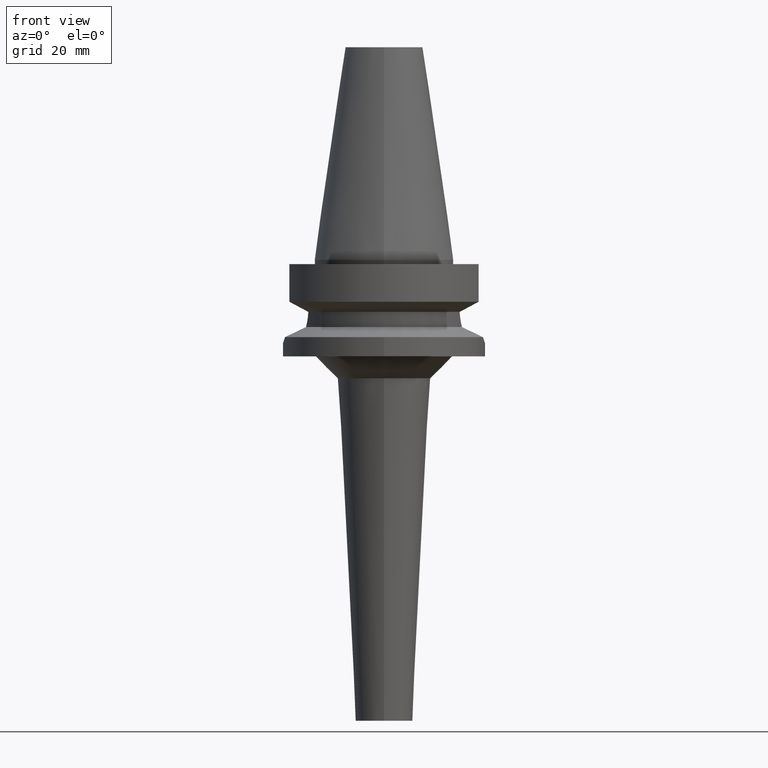
[diagram: clean part render]
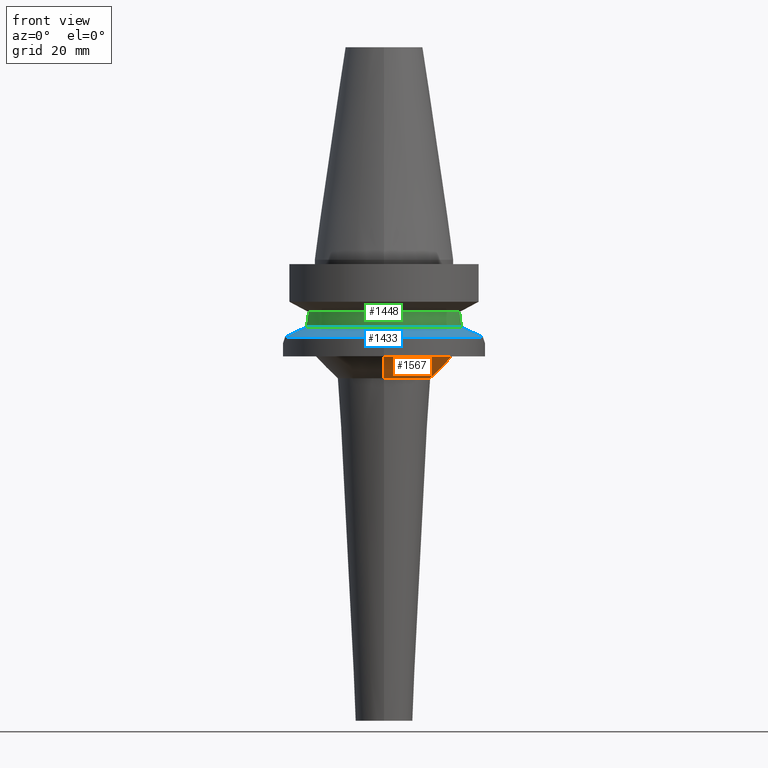
[diagram: same view with three faces highlighted in distinct colors, each labeled with its STEP entity id]
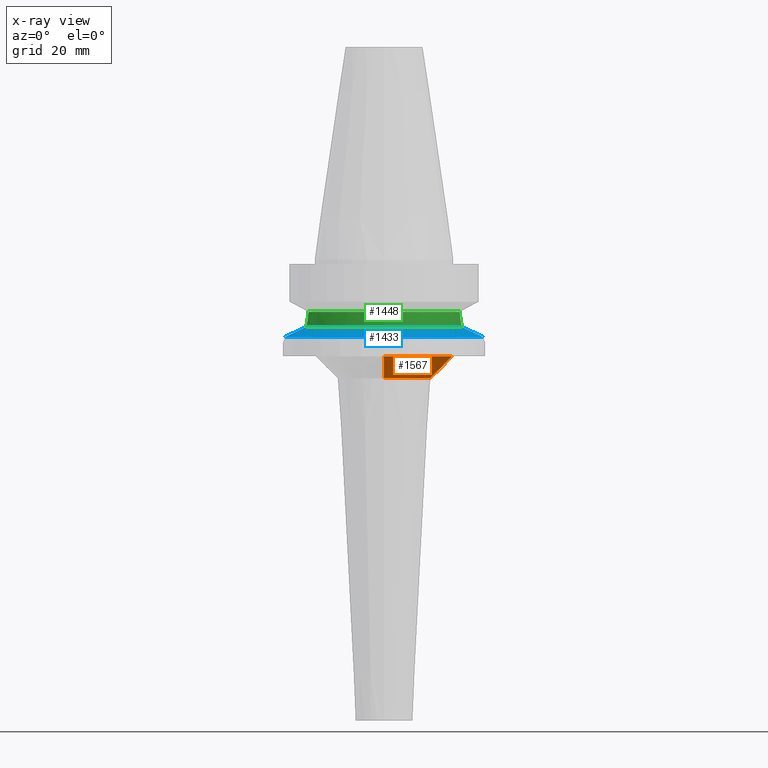
[diagram: x-ray of the same camera — body ghosted, the three highlighted faces saturated]
A machine part, front view with three faces highlighted in distinct colors.
The next image is the same camera in x-ray (body ghosted, the three faces saturated) — at least one of them is partly hidden behind the body in this view.
Their STEP definitions:

[orange] entity #1567 — the highlighted conical surface has half-angle 45 deg.
#639=CARTESIAN_POINT('',(0.E0,0.E0,-2.2E1));
#640=DIRECTION('',(0.E0,0.E0,-1.E0));
#641=DIRECTION('',(0.E0,1.E0,0.E0));
#642=AXIS2_PLACEMENT_3D('',#639,#640,#641);
#647=DIRECTION('',(0.E0,7.071067811866E-1,-7.071067811865E-1));
#648=VECTOR('',#647,7.071067811866E0);
#649=CARTESIAN_POINT('',(0.E0,-1.558780678408E1,-2.2E1));
#650=LINE('',#649,#648);
#662=DIRECTION('',(0.E0,-7.071067811866E-1,-7.071067811865E-1));
#663=VECTOR('',#662,7.071067811866E0);
#664=CARTESIAN_POINT('',(0.E0,1.558780678408E1,-2.2E1));
#665=LINE('',#664,#663);
#676=CARTESIAN_POINT('',(0.E0,0.E0,-2.7E1));
#677=DIRECTION('',(0.E0,0.E0,1.E0));
#678=DIRECTION('',(0.E0,-1.E0,0.E0));
#679=AXIS2_PLACEMENT_3D('',#676,#677,#678);
#1023=CARTESIAN_POINT('',(0.E0,1.058780678408E1,-2.7E1));
#1024=VERTEX_POINT('',#1023);
#1025=CARTESIAN_POINT('',(0.E0,-1.058780678408E1,-2.7E1));
#1026=VERTEX_POINT('',#1025);
#1027=CARTESIAN_POINT('',(0.E0,1.558780678408E1,-2.2E1));
#1028=VERTEX_POINT('',#1027);
#1029=CARTESIAN_POINT('',(0.E0,-1.558780678408E1,-2.2E1));
#1030=VERTEX_POINT('',#1029);
#1555=CARTESIAN_POINT('',(0.E0,0.E0,-2.45E1));
#1556=DIRECTION('',(0.E0,0.E0,1.E0));
#1557=DIRECTION('',(0.E0,1.E0,0.E0));
#1558=AXIS2_PLACEMENT_3D('',#1555,#1556,#1557);
#1559=CONICAL_SURFACE('',#1558,1.308780678408E1,4.5E1);
#1560=ORIENTED_EDGE('',*,*,#1545,.T.);
#1562=ORIENTED_EDGE('',*,*,#1561,.F.);
#1563=ORIENTED_EDGE('',*,*,#1548,.F.);
#1564=ORIENTED_EDGE('',*,*,#1535,.F.);
#1565=EDGE_LOOP('',(#1560,#1562,#1563,#1564));
#1566=FACE_OUTER_BOUND('',#1565,.F.);
#643=CIRCLE('',#642,1.558780678408E1);
#680=CIRCLE('',#679,1.058780678408E1);
#1535=EDGE_CURVE('',#1028,#1030,#643,.T.);
#1545=EDGE_CURVE('',#1028,#1024,#665,.T.);
#1548=EDGE_CURVE('',#1030,#1026,#650,.T.);
#1561=EDGE_CURVE('',#1026,#1024,#680,.T.);
#1567=ADVANCED_FACE('',(#1566),#1559,.T.);

[blue] entity #1433 — the highlighted conical surface has half-angle 60 deg.
#430=CARTESIAN_POINT('',(-2.255786346208E1,-4.488072640470E0,
-1.763279163029E1));
#431=CARTESIAN_POINT('',(-2.209865842715E1,-4.819633542796E0,
-1.741011980440E1));
#432=CARTESIAN_POINT('',(-2.112042381301E1,-5.416862613083E0,
-1.693661522924E1));
#433=CARTESIAN_POINT('',(-1.958642899302E1,-6.133917589245E0,
-1.619751952258E1));
#434=CARTESIAN_POINT('',(-1.838842661906E1,-6.563898334625E0,
-1.562396103069E1));
#435=CARTESIAN_POINT('',(-1.775736593456E1,-6.758398853744E0,
-1.532339055353E1));
#440=CARTESIAN_POINT('',(0.E0,1.022848384030E-14,-1.532339055353E1));
#441=DIRECTION('',(0.E0,0.E0,1.E0));
#442=DIRECTION('',(-9.345982070819E-1,-3.557052028286E-1,0.E0));
#443=AXIS2_PLACEMENT_3D('',#440,#441,#442);
#448=CARTESIAN_POINT('',(0.E0,1.022848384030E-14,-1.532339055353E1));
#449=DIRECTION('',(0.E0,0.E0,1.E0));
#450=DIRECTION('',(0.E0,-1.E0,0.E0));
#451=AXIS2_PLACEMENT_3D('',#448,#449,#450);
#456=CARTESIAN_POINT('',(1.775736593456E1,-6.758398853744E0,-1.532339055353E1));
#457=CARTESIAN_POINT('',(1.840360769520E1,-6.559219343741E0,-1.563119168760E1));
#458=CARTESIAN_POINT('',(1.962126651941E1,-6.120537216752E0,-1.621423420870E1));
#459=CARTESIAN_POINT('',(2.116333771721E1,-5.393599340677E0,-1.695735369637E1));
#460=CARTESIAN_POINT('',(2.211578077610E1,-4.807270652504E0,-1.741842255462E1));
#461=CARTESIAN_POINT('',(2.255786346208E1,-4.488072640470E0,-1.763279163029E1));
#466=CARTESIAN_POINT('',(0.E0,1.022848384030E-14,-1.763279163029E1));
#467=DIRECTION('',(0.E0,0.E0,-1.E0));
#468=DIRECTION('',(9.807766722644E-1,-1.951335930639E-1,0.E0));
#469=AXIS2_PLACEMENT_3D('',#466,#467,#468);
#474=CARTESIAN_POINT('',(0.E0,1.022848384030E-14,-1.763279163029E1));
#475=DIRECTION('',(0.E0,0.E0,-1.E0));
#476=DIRECTION('',(0.E0,-1.E0,0.E0));
#477=AXIS2_PLACEMENT_3D('',#474,#475,#476);
#516=CARTESIAN_POINT('',(2.255786346208E1,-4.488072640470E0,-1.763279163029E1));
#1037=VERTEX_POINT('',#516);
#1040=CARTESIAN_POINT('',(0.E0,-2.3E1,-1.763279163029E1));
#1041=VERTEX_POINT('',#1040);
#1042=VERTEX_POINT('',#456);
#1055=VERTEX_POINT('',#430);
#1056=VERTEX_POINT('',#435);
#1057=CARTESIAN_POINT('',(0.E0,-1.9E1,-1.532339055353E1));
#1058=VERTEX_POINT('',#1057);
#1415=CARTESIAN_POINT('',(0.E0,1.022848384030E-14,-1.647809109191E1));
#1416=DIRECTION('',(0.E0,0.E0,-1.E0));
#1417=DIRECTION('',(0.E0,-1.E0,0.E0));
#1418=AXIS2_PLACEMENT_3D('',#1415,#1416,#1417);
#1419=CONICAL_SURFACE('',#1418,2.1E1,6.E1);
#1420=ORIENTED_EDGE('',*,*,#1396,.T.);
#1422=ORIENTED_EDGE('',*,*,#1421,.T.);
#1424=ORIENTED_EDGE('',*,*,#1423,.T.);
#1426=ORIENTED_EDGE('',*,*,#1425,.T.);
#1428=ORIENTED_EDGE('',*,*,#1427,.T.);
#1430=ORIENTED_EDGE('',*,*,#1429,.T.);
#1431=EDGE_LOOP('',(#1420,#1422,#1424,#1426,#1428,#1430));
#1432=FACE_OUTER_BOUND('',#1431,.F.);
#436=B_SPLINE_CURVE_WITH_KNOTS('',3,(#430,#431,#432,#433,#434,#435),
.UNSPECIFIED.,.F.,.F.,(4,1,1,4),(0.E0,3.333333333333E-1,6.666666666667E-1,1.E0),
.UNSPECIFIED.);
#444=CIRCLE('',#443,1.9E1);
#452=CIRCLE('',#451,1.9E1);
#462=B_SPLINE_CURVE_WITH_KNOTS('',3,(#456,#457,#458,#459,#460,#461),
.UNSPECIFIED.,.F.,.F.,(4,1,1,4),(0.E0,3.333333333333E-1,6.666666666667E-1,1.E0),
.UNSPECIFIED.);
#470=CIRCLE('',#469,2.3E1);
#478=CIRCLE('',#477,2.3E1);
#1396=EDGE_CURVE('',#1055,#1056,#436,.T.);
#1421=EDGE_CURVE('',#1056,#1058,#444,.T.);
#1423=EDGE_CURVE('',#1058,#1042,#452,.T.);
#1425=EDGE_CURVE('',#1042,#1037,#462,.T.);
#1427=EDGE_CURVE('',#1037,#1041,#470,.T.);
#1429=EDGE_CURVE('',#1041,#1055,#478,.T.);
#1433=ADVANCED_FACE('',(#1432),#1419,.T.);

[green] entity #1448 — the highlighted cylindrical surface (partial cylindrical patch) has radius 19 mm, axis along (0, 0, -1).
#243=CARTESIAN_POINT('',(0.E0,1.093341284897E-14,-1.187660944647E1));
#244=DIRECTION('',(0.E0,0.E0,-1.E0));
#245=DIRECTION('',(9.071218755694E-1,-4.208680349747E-1,0.E0));
#246=AXIS2_PLACEMENT_3D('',#243,#244,#245);
#251=CARTESIAN_POINT('',(0.E0,1.093341284897E-14,-1.187660944647E1));
#252=DIRECTION('',(0.E0,0.E0,-1.E0));
#253=DIRECTION('',(0.E0,-1.E0,0.E0));
#254=AXIS2_PLACEMENT_3D('',#251,#252,#253);
#259=CARTESIAN_POINT('',(-1.723531622871E1,-7.996491146968E0,
-1.187660607766E1));
#435=CARTESIAN_POINT('',(-1.775736593456E1,-6.758398853744E0,
-1.532339055353E1));
#440=CARTESIAN_POINT('',(0.E0,1.022848384030E-14,-1.532339055353E1));
#441=DIRECTION('',(0.E0,0.E0,1.E0));
#442=DIRECTION('',(-9.345982070819E-1,-3.557052028286E-1,0.E0));
#443=AXIS2_PLACEMENT_3D('',#440,#441,#442);
#448=CARTESIAN_POINT('',(0.E0,1.022848384030E-14,-1.532339055353E1));
#449=DIRECTION('',(0.E0,0.E0,1.E0));
#450=DIRECTION('',(0.E0,-1.E0,0.E0));
#451=AXIS2_PLACEMENT_3D('',#448,#449,#450);
#456=CARTESIAN_POINT('',(1.775736593456E1,-6.758398853744E0,-1.532339055353E1));
#482=CARTESIAN_POINT('',(-1.775736593456E1,-6.758398853744E0,
-1.532339055353E1));
#483=CARTESIAN_POINT('',(-1.766912029360E1,-6.990260004965E0,
-1.496508499644E1));
#484=CARTESIAN_POINT('',(-1.750821497163E1,-7.386448373773E0,
-1.422991351577E1));
#485=CARTESIAN_POINT('',(-1.732653972797E1,-7.799370525108E0,
-1.306364447518E1));
#486=CARTESIAN_POINT('',(-1.725677323773E1,-7.950243580883E0,
-1.227571965473E1));
#487=CARTESIAN_POINT('',(-1.723531622871E1,-7.996491146968E0,
-1.187660607766E1));
#492=CARTESIAN_POINT('',(1.723531135314E1,-7.996501749112E0,-1.187660739353E1));
#493=CARTESIAN_POINT('',(1.725678889125E1,-7.950209935444E0,-1.227610109962E1));
#494=CARTESIAN_POINT('',(1.732665303634E1,-7.799119177172E0,-1.306450180029E1));
#495=CARTESIAN_POINT('',(1.750823173234E1,-7.386403530797E0,-1.422993365443E1));
#496=CARTESIAN_POINT('',(1.766912364433E1,-6.990251201065E0,-1.496509860151E1));
#497=CARTESIAN_POINT('',(1.775736593456E1,-6.758398853744E0,-1.532339055353E1));
#1042=VERTEX_POINT('',#456);
#1043=VERTEX_POINT('',#492);
#1056=VERTEX_POINT('',#435);
#1057=CARTESIAN_POINT('',(0.E0,-1.9E1,-1.532339055353E1));
#1058=VERTEX_POINT('',#1057);
#1073=VERTEX_POINT('',#259);
#1074=CARTESIAN_POINT('',(0.E0,-1.9E1,-1.187660944647E1));
#1075=VERTEX_POINT('',#1074);
#1434=CARTESIAN_POINT('',(0.E0,1.911306259429E-14,5.607E1));
#1435=DIRECTION('',(0.E0,0.E0,-1.E0));
#1436=DIRECTION('',(0.E0,-1.E0,0.E0));
#1437=AXIS2_PLACEMENT_3D('',#1434,#1435,#1436);
#1438=CYLINDRICAL_SURFACE('',#1437,1.9E1);
#1439=ORIENTED_EDGE('',*,*,#1410,.T.);
#1440=ORIENTED_EDGE('',*,*,#1270,.F.);
#1441=ORIENTED_EDGE('',*,*,#1268,.F.);
#1443=ORIENTED_EDGE('',*,*,#1442,.T.);
#1444=ORIENTED_EDGE('',*,*,#1423,.F.);
#1445=ORIENTED_EDGE('',*,*,#1421,.F.);
#1446=EDGE_LOOP('',(#1439,#1440,#1441,#1443,#1444,#1445));
#1447=FACE_OUTER_BOUND('',#1446,.F.);
#247=CIRCLE('',#246,1.9E1);
#255=CIRCLE('',#254,1.9E1);
#444=CIRCLE('',#443,1.9E1);
#452=CIRCLE('',#451,1.9E1);
#488=B_SPLINE_CURVE_WITH_KNOTS('',3,(#482,#483,#484,#485,#486,#487),
.UNSPECIFIED.,.F.,.F.,(4,1,1,4),(0.E0,3.333333333333E-1,6.666666666667E-1,1.E0),
.UNSPECIFIED.);
#498=B_SPLINE_CURVE_WITH_KNOTS('',3,(#492,#493,#494,#495,#496,#497),
.UNSPECIFIED.,.F.,.F.,(4,1,1,4),(0.E0,3.333333333333E-1,6.666666666667E-1,1.E0),
.UNSPECIFIED.);
#1268=EDGE_CURVE('',#1043,#1075,#247,.T.);
#1270=EDGE_CURVE('',#1075,#1073,#255,.T.);
#1410=EDGE_CURVE('',#1056,#1073,#488,.T.);
#1421=EDGE_CURVE('',#1056,#1058,#444,.T.);
#1423=EDGE_CURVE('',#1058,#1042,#452,.T.);
#1442=EDGE_CURVE('',#1043,#1042,#498,.T.);
#1448=ADVANCED_FACE('',(#1447),#1438,.T.);